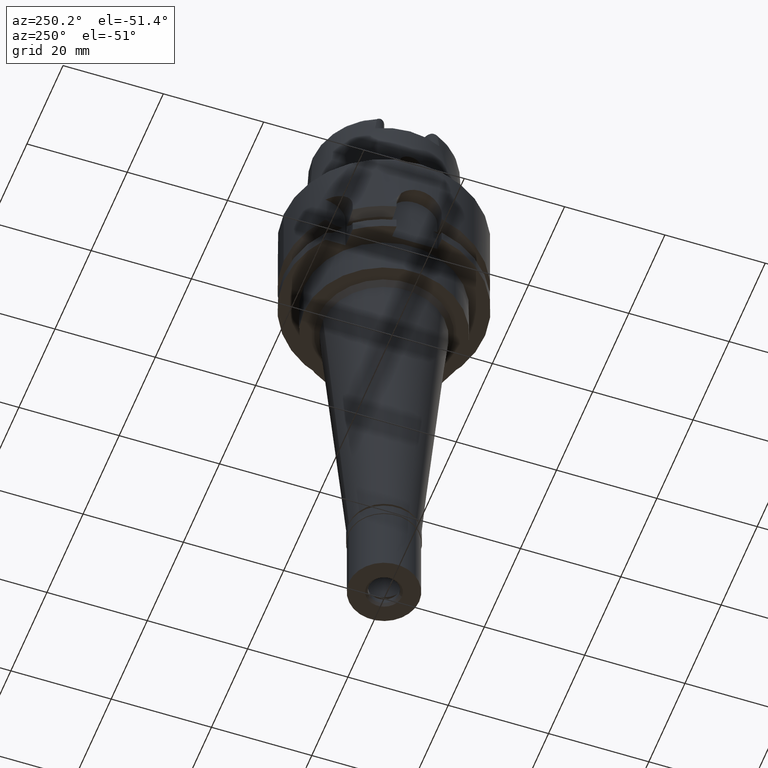
[diagram: clean part render]
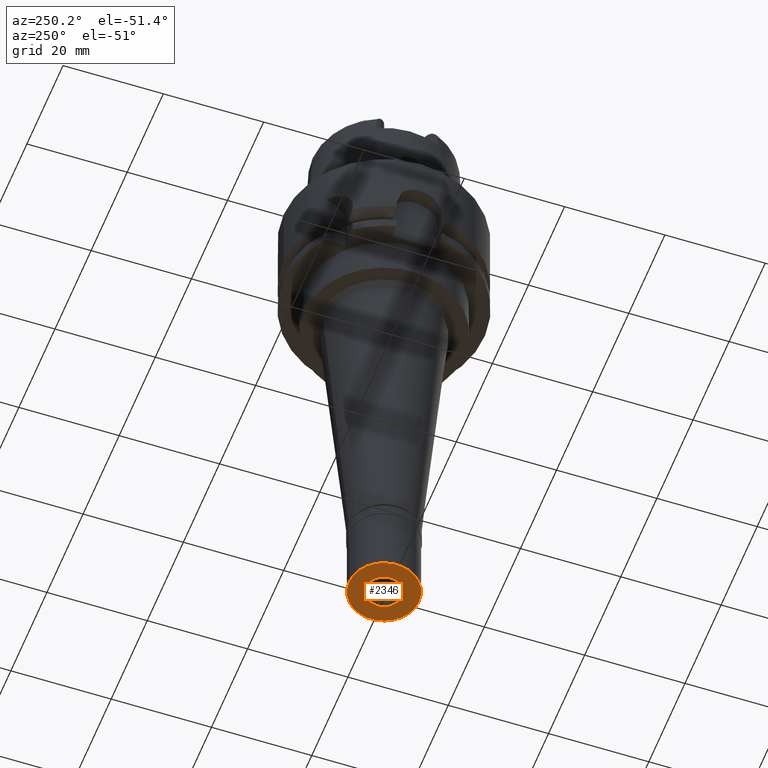
[diagram: same view with one face highlighted and labeled with its STEP entity id]
A machine part, auxiliary view. The second image highlights one B-rep face of the part: STEP entity #2346.
In plain terms, the highlighted planar face has unit normal (0, 0, 1).
Its self-contained STEP definition (entity closure, byte-faithful):
#48 = VERTEX_POINT ( 'NONE', #2344 ) ;
#76 = CARTESIAN_POINT ( 'NONE',  ( 0.0000000000000000000, 0.0000000000000000000, -17.00000000000000000 ) ) ;
#93 = VERTEX_POINT ( 'NONE', #2068 ) ;
#126 = DIRECTION ( 'NONE',  ( 0.0000000000000000000, 0.0000000000000000000, 1.000000000000000000 ) ) ;
#525 = CIRCLE ( 'NONE', #2300, 7.000000000000000000 ) ;
#554 = CIRCLE ( 'NONE', #4947, 3.550000000000000266 ) ;
#796 = CARTESIAN_POINT ( 'NONE',  ( 0.0000000000000000000, -7.000000000000000000, -17.00000000000000000 ) ) ;
#831 = EDGE_CURVE ( 'NONE', #4596, #48, #2265, .T. ) ;
#1021 = ORIENTED_EDGE ( 'NONE', *, *, #1238, .F. ) ;
#1067 = AXIS2_PLACEMENT_3D ( 'NONE', #5076, #1785, #1454 ) ;
#1163 = CARTESIAN_POINT ( 'NONE',  ( 0.0000000000000000000, 3.550000000000000266, -17.00000000000000000 ) ) ;
#1238 = EDGE_CURVE ( 'NONE', #4100, #93, #525, .T. ) ;
#1266 = DIRECTION ( 'NONE',  ( 0.0000000000000000000, 0.0000000000000000000, 1.000000000000000000 ) ) ;
#1282 = DIRECTION ( 'NONE',  ( 0.0000000000000000000, -1.000000000000000000, 0.0000000000000000000 ) ) ;
#1339 = CARTESIAN_POINT ( 'NONE',  ( 0.0000000000000000000, 0.0000000000000000000, -17.00000000000000000 ) ) ;
#1367 = DIRECTION ( 'NONE',  ( 0.0000000000000000000, 0.0000000000000000000, -1.000000000000000000 ) ) ;
#1454 = DIRECTION ( 'NONE',  ( 0.0000000000000000000, 1.000000000000000000, 0.0000000000000000000 ) ) ;
#1537 = EDGE_LOOP ( 'NONE', ( #4151, #1021 ) ) ;
#1573 = DIRECTION ( 'NONE',  ( 0.0000000000000000000, -1.000000000000000000, 0.0000000000000000000 ) ) ;
#1785 = DIRECTION ( 'NONE',  ( 0.0000000000000000000, 0.0000000000000000000, 1.000000000000000000 ) ) ;
#1817 = DIRECTION ( 'NONE',  ( 0.0000000000000000000, 1.000000000000000000, 0.0000000000000000000 ) ) ;
#2068 = CARTESIAN_POINT ( 'NONE',  ( 0.0000000000000000000, 7.000000000000000000, -17.00000000000000000 ) ) ;
#2118 = DIRECTION ( 'NONE',  ( 1.000000000000000000, 0.0000000000000000000, 0.0000000000000000000 ) ) ;
#2265 = CIRCLE ( 'NONE', #5231, 3.550000000000000266 ) ;
#2300 = AXIS2_PLACEMENT_3D ( 'NONE', #2786, #1266, #1573 ) ;
#2344 = CARTESIAN_POINT ( 'NONE',  ( 0.0000000000000000000, -3.550000000000000266, -17.00000000000000000 ) ) ;
#2346 = ADVANCED_FACE ( 'NONE', ( #2589, #2965 ), #4109, .F. ) ;
#2589 = FACE_OUTER_BOUND ( 'NONE', #1537, .T. ) ;
#2786 = CARTESIAN_POINT ( 'NONE',  ( 0.0000000000000000000, 0.0000000000000000000, -17.00000000000000000 ) ) ;
#2881 = DIRECTION ( 'NONE',  ( 0.0000000000000000000, 0.0000000000000000000, -1.000000000000000000 ) ) ;
#2965 = FACE_BOUND ( 'NONE', #4906, .T. ) ;
#3239 = CARTESIAN_POINT ( 'NONE',  ( 0.0000000000000000000, 0.0000000000000000000, -17.00000000000000000 ) ) ;
#3606 = CIRCLE ( 'NONE', #1067, 7.000000000000000000 ) ;
#3623 = EDGE_CURVE ( 'NONE', #48, #4596, #554, .T. ) ;
#3627 = ORIENTED_EDGE ( 'NONE', *, *, #3623, .F. ) ;
#3836 = AXIS2_PLACEMENT_3D ( 'NONE', #76, #126, #2118 ) ;
#3916 = EDGE_CURVE ( 'NONE', #93, #4100, #3606, .T. ) ;
#4100 = VERTEX_POINT ( 'NONE', #796 ) ;
#4109 = PLANE ( 'NONE',  #3836 ) ;
#4151 = ORIENTED_EDGE ( 'NONE', *, *, #3916, .F. ) ;
#4372 = ORIENTED_EDGE ( 'NONE', *, *, #831, .F. ) ;
#4596 = VERTEX_POINT ( 'NONE', #1163 ) ;
#4906 = EDGE_LOOP ( 'NONE', ( #4372, #3627 ) ) ;
#4947 = AXIS2_PLACEMENT_3D ( 'NONE', #3239, #2881, #1282 ) ;
#5076 = CARTESIAN_POINT ( 'NONE',  ( 0.0000000000000000000, 0.0000000000000000000, -17.00000000000000000 ) ) ;
#5231 = AXIS2_PLACEMENT_3D ( 'NONE', #1339, #1367, #1817 ) ;